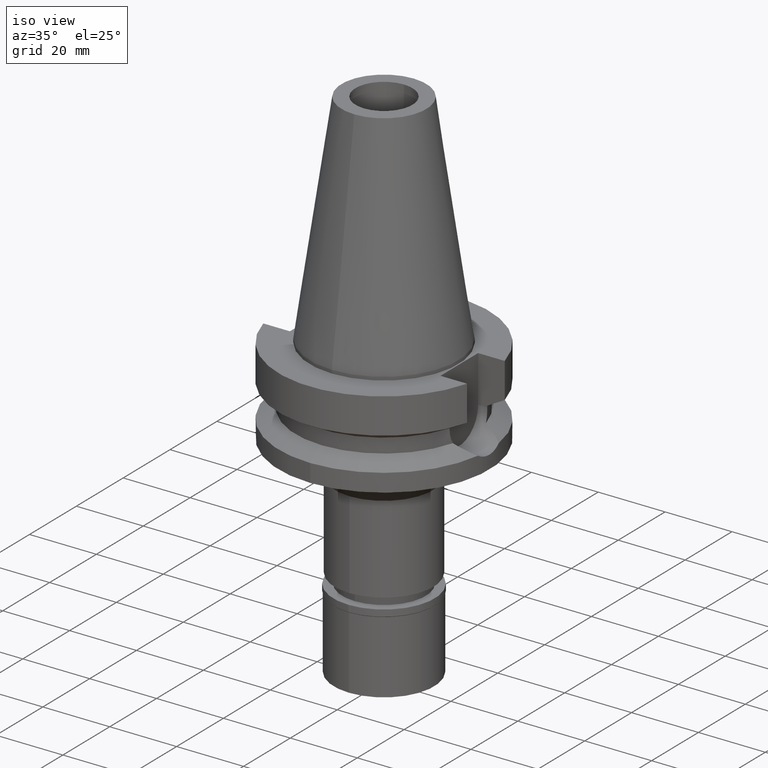
[diagram: clean part render]
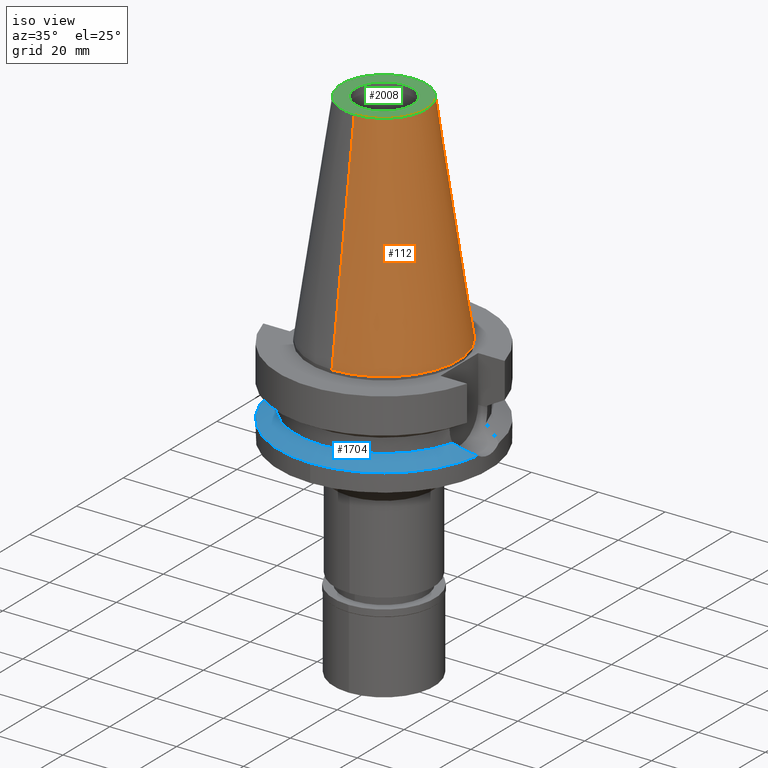
[diagram: same view with three faces highlighted in distinct colors, each labeled with its STEP entity id]
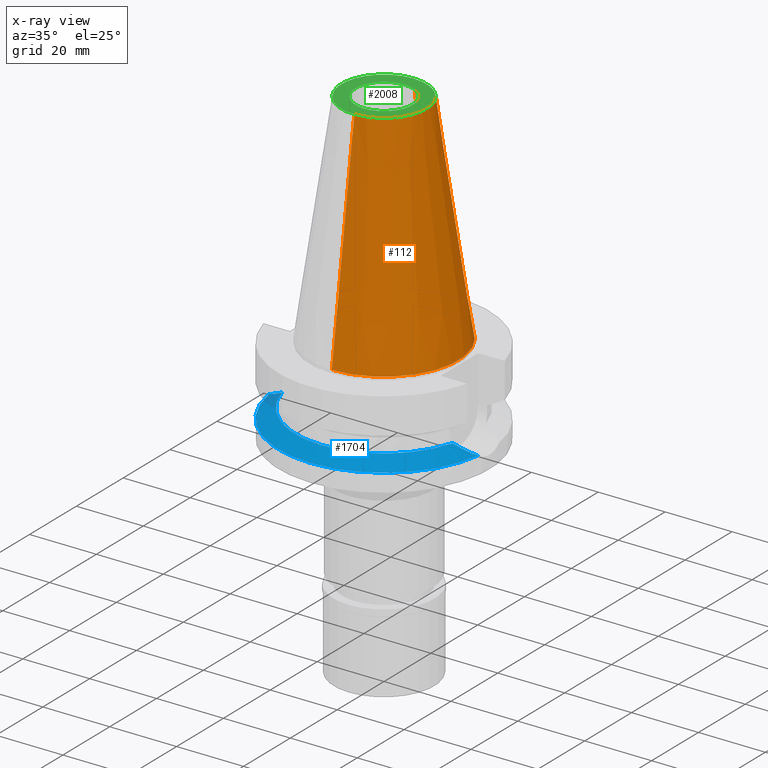
[diagram: x-ray of the same camera — body ghosted, the three highlighted faces saturated]
A machine part, iso view with three faces highlighted in distinct colors.
The next image is the same camera in x-ray (body ghosted, the three faces saturated) — at least one of them is partly hidden behind the body in this view.
Their STEP definitions:

[orange] entity #112 — the highlighted conical surface has half-angle 8.297 deg.
#112 = ADVANCED_FACE ( 'NONE', ( #1559 ), #3035, .T. ) ;
#232 = CARTESIAN_POINT ( 'NONE',  ( 0.0000000000000000000, -12.68766899429999917, 65.40000000000000568 ) ) ;
#292 = EDGE_CURVE ( 'NONE', #792, #3048, #1440, .T. ) ;
#346 = CARTESIAN_POINT ( 'NONE',  ( 0.0000000000000000000, 22.22500000000000142, -7.105427357600999334E-14 ) ) ;
#361 = CARTESIAN_POINT ( 'NONE',  ( 0.0000000000000000000, 12.68766899429999917, 65.40000000000000568 ) ) ;
#363 = VECTOR ( 'NONE', #839, 1000.000000000000114 ) ;
#732 = DIRECTION ( 'NONE',  ( 0.0000000000000000000, 1.000000000000000000, 0.0000000000000000000 ) ) ;
#792 = VERTEX_POINT ( 'NONE', #3096 ) ;
#822 = EDGE_CURVE ( 'NONE', #2802, #3048, #2033, .T. ) ;
#831 = AXIS2_PLACEMENT_3D ( 'NONE', #1141, #2102, #2855 ) ;
#839 = DIRECTION ( 'NONE',  ( 0.0000000000000000000, 0.1443043893539925626, -0.9895333461855498891 ) ) ;
#941 = CARTESIAN_POINT ( 'NONE',  ( 0.0000000000000000000, 0.0000000000000000000, 65.40000000000000568 ) ) ;
#982 = DIRECTION ( 'NONE',  ( 0.0000000000000000000, -0.1443043893539925626, -0.9895333461855498891 ) ) ;
#1141 = CARTESIAN_POINT ( 'NONE',  ( 0.0000000000000000000, 0.0000000000000000000, -2.273736754432000254E-13 ) ) ;
#1168 = EDGE_CURVE ( 'NONE', #2868, #2802, #3023, .T. ) ;
#1317 = ORIENTED_EDGE ( 'NONE', *, *, #822, .F. ) ;
#1440 = LINE ( 'NONE', #232, #2731 ) ;
#1559 = FACE_OUTER_BOUND ( 'NONE', #1953, .T. ) ;
#1674 = CIRCLE ( 'NONE', #1719, 12.68766899429999917 ) ;
#1719 = AXIS2_PLACEMENT_3D ( 'NONE', #941, #1949, #732 ) ;
#1776 = AXIS2_PLACEMENT_3D ( 'NONE', #2521, #2050, #1813 ) ;
#1813 = DIRECTION ( 'NONE',  ( 0.0000000000000000000, -1.000000000000000000, 0.0000000000000000000 ) ) ;
#1949 = DIRECTION ( 'NONE',  ( 0.0000000000000000000, 0.0000000000000000000, -1.000000000000000000 ) ) ;
#1953 = EDGE_LOOP ( 'NONE', ( #2608, #2435, #1317, #3103 ) ) ;
#2033 = CIRCLE ( 'NONE', #831, 22.22500000000000142 ) ;
#2050 = DIRECTION ( 'NONE',  ( 0.0000000000000000000, 0.0000000000000000000, -1.000000000000000000 ) ) ;
#2102 = DIRECTION ( 'NONE',  ( 0.0000000000000000000, 0.0000000000000000000, -1.000000000000000000 ) ) ;
#2336 = CARTESIAN_POINT ( 'NONE',  ( 0.0000000000000000000, 12.68766899429999917, 65.40000000000000568 ) ) ;
#2435 = ORIENTED_EDGE ( 'NONE', *, *, #292, .T. ) ;
#2521 = CARTESIAN_POINT ( 'NONE',  ( 0.0000000000000000000, 0.0000000000000000000, 32.70000000000000284 ) ) ;
#2608 = ORIENTED_EDGE ( 'NONE', *, *, #3056, .T. ) ;
#2731 = VECTOR ( 'NONE', #982, 1000.000000000000114 ) ;
#2802 = VERTEX_POINT ( 'NONE', #346 ) ;
#2855 = DIRECTION ( 'NONE',  ( 0.0000000000000000000, 1.000000000000000000, 0.0000000000000000000 ) ) ;
#2868 = VERTEX_POINT ( 'NONE', #2336 ) ;
#3023 = LINE ( 'NONE', #361, #363 ) ;
#3035 = CONICAL_SURFACE ( 'NONE', #1776, 17.45633449714999941, 0.1448099680379422438 ) ;
#3048 = VERTEX_POINT ( 'NONE', #3110 ) ;
#3056 = EDGE_CURVE ( 'NONE', #2868, #792, #1674, .T. ) ;
#3096 = CARTESIAN_POINT ( 'NONE',  ( 0.0000000000000000000, -12.68766899429999917, 65.40000000000000568 ) ) ;
#3103 = ORIENTED_EDGE ( 'NONE', *, *, #1168, .F. ) ;
#3110 = CARTESIAN_POINT ( 'NONE',  ( 0.0000000000000000000, -22.22500000000000142, -2.273736754432000254E-13 ) ) ;

[blue] entity #1704 — the highlighted conical surface has half-angle 60 deg.
#15 = CARTESIAN_POINT ( 'NONE',  ( 29.76982105345421914, -5.404320427155151485, -20.91622555146430429 ) ) ;
#28 = VERTEX_POINT ( 'NONE', #2698 ) ;
#67 = CARTESIAN_POINT ( 'NONE',  ( -27.47065402139822154, -6.468757675472927460, -19.74146199464955487 ) ) ;
#129 = DIRECTION ( 'NONE',  ( 0.0000000000000000000, 0.0000000000000000000, -1.000000000000000000 ) ) ;
#193 = B_SPLINE_CURVE_WITH_KNOTS ( 'NONE', 3,
 ( #2878, #977, #286, #15, #739, #1699, #2665, #2419, #258, #993, #2908, #2679, #1482, #2436, #270, #1241, #1966 ),
 .UNSPECIFIED., .F., .F.,
 ( 4, 2, 2, 1, 1, 1, 1, 1, 2, 2, 4 ),
 ( 0.0000000000000000000, 0.2499999999999662492, 0.3749999999999486522, 0.4374999999999395484, 0.4687499999999352740, 0.4843749999999334976, 0.4921874999999318323, 0.4960937499999305000, 0.4980468749999298894, 0.4999999999999292788, 1.000000000000000000 ),
 .UNSPECIFIED. ) ;
#221 = CARTESIAN_POINT ( 'NONE',  ( -31.17899877608999759, -4.485536235554000051, -21.63449434733000132 ) ) ;
#254 = AXIS2_PLACEMENT_3D ( 'NONE', #2751, #2535, #1036 ) ;
#258 = CARTESIAN_POINT ( 'NONE',  ( 28.61897016987714082, -5.988680026677794643, -20.32900422802094198 ) ) ;
#270 = CARTESIAN_POINT ( 'NONE',  ( 27.73230429448020828, -6.390938510081704216, -19.87634594008250133 ) ) ;
#286 = CARTESIAN_POINT ( 'NONE',  ( 30.43967032993277044, -5.011381104140312459, -21.25783662736348134 ) ) ;
#475 = CARTESIAN_POINT ( 'NONE',  ( -30.47175200557827068, -5.022102185217673487, -21.27443928782956561 ) ) ;
#488 = VERTEX_POINT ( 'NONE', #2283 ) ;
#518 = EDGE_LOOP ( 'NONE', ( #2089, #753, #2187, #1028, #2664 ) ) ;
#688 = CARTESIAN_POINT ( 'NONE',  ( -26.07040359068502866, -6.949796083382365097, -19.02447395380931283 ) ) ;
#713 = CARTESIAN_POINT ( 'NONE',  ( -27.52057603150045040, -6.449753868271356438, -19.76696955289208546 ) ) ;
#739 = CARTESIAN_POINT ( 'NONE',  ( 29.53370445138950018, -5.534581355758064980, -20.79578654995100351 ) ) ;
#753 = ORIENTED_EDGE ( 'NONE', *, *, #1742, .F. ) ;
#835 = DIRECTION ( 'NONE',  ( 0.9898094849552905306, -0.1423979757318985240, 0.0000000000000000000 ) ) ;
#862 = CIRCLE ( 'NONE', #1062, 26.50000000000000000 ) ;
#967 = CARTESIAN_POINT ( 'NONE',  ( -27.52933886014979947, -6.446408567850159699, -19.77144664971403643 ) ) ;
#977 = CARTESIAN_POINT ( 'NONE',  ( 30.83487453224974928, -4.746612509632987198, -21.45930277310862522 ) ) ;
#987 = CARTESIAN_POINT ( 'NONE',  ( -28.07183645631407032, -6.231961779058677209, -20.04870173871303507 ) ) ;
#993 = CARTESIAN_POINT ( 'NONE',  ( 28.55944365317538569, -6.015997510138801019, -20.29861694154288543 ) ) ;
#1010 = CARTESIAN_POINT ( 'NONE',  ( 31.17899877608999759, -4.485536235554000051, -21.63449434733000132 ) ) ;
#1028 = ORIENTED_EDGE ( 'NONE', *, *, #1745, .F. ) ;
#1036 = DIRECTION ( 'NONE',  ( 0.0000000000000000000, -1.000000000000000000, 0.0000000000000000000 ) ) ;
#1062 = AXIS2_PLACEMENT_3D ( 'NONE', #2787, #2518, #1086 ) ;
#1086 = DIRECTION ( 'NONE',  ( 0.0000000000000000000, -1.000000000000000000, 0.0000000000000000000 ) ) ;
#1187 = CARTESIAN_POINT ( 'NONE',  ( -29.60898557402410702, -5.537317144311764139, -20.83455795139698097 ) ) ;
#1241 = CARTESIAN_POINT ( 'NONE',  ( 26.74214023332276113, -6.765147190998635374, -19.36957692596562808 ) ) ;
#1288 = CARTESIAN_POINT ( 'NONE',  ( -25.53175183775000079, -7.097862220092999941, -18.74774300138999905 ) ) ;
#1313 = CIRCLE ( 'NONE', #2417, 31.50000000000000000 ) ;
#1367 = AXIS2_PLACEMENT_3D ( 'NONE', #2485, #129, #835 ) ;
#1411 = CARTESIAN_POINT ( 'NONE',  ( -27.17357340037822411, -6.578921279836705160, -19.58958909798310088 ) ) ;
#1482 = CARTESIAN_POINT ( 'NONE',  ( 28.50814364445222182, -6.039357040020113310, -20.27242796913080625 ) ) ;
#1621 = CONICAL_SURFACE ( 'NONE', #254, 29.00000000000000000, 1.047197551196400456 ) ;
#1659 = VERTEX_POINT ( 'NONE', #1010 ) ;
#1675 = CIRCLE ( 'NONE', #1367, 31.50000000000001421 ) ;
#1699 = CARTESIAN_POINT ( 'NONE',  ( 29.16030245098043139, -5.727528669919626836, -20.60527508336068081 ) ) ;
#1704 = ADVANCED_FACE ( 'NONE', ( #2720 ), #1621, .T. ) ;
#1708 = CARTESIAN_POINT ( 'NONE',  ( -27.50632344154401565, -6.455186114388115293, -19.75968739767788662 ) ) ;
#1742 = EDGE_CURVE ( 'NONE', #1659, #488, #1675, .T. ) ;
#1745 = EDGE_CURVE ( 'NONE', #1753, #28, #862, .T. ) ;
#1753 = VERTEX_POINT ( 'NONE', #1288 ) ;
#1966 = CARTESIAN_POINT ( 'NONE',  ( 25.53175183775000079, -7.097862220092999941, -18.74774300138999905 ) ) ;
#2089 = ORIENTED_EDGE ( 'NONE', *, *, #2995, .F. ) ;
#2148 = B_SPLINE_CURVE_WITH_KNOTS ( 'NONE', 3,
 ( #221, #475, #1187, #2185, #987, #3099, #2159, #2236, #967, #713, #1708, #67, #2622, #1411, #2867, #688, #2363 ),
 .UNSPECIFIED., .F., .F.,
 ( 4, 2, 2, 1, 2, 2, 1, 1, 2, 4 ),
 ( 0.0000000000000000000, 0.5000000000000196509, 0.6250000000000249800, 0.6562500000000264233, 0.6640625000000263123, 0.6679687500000267564, 0.6718750000000273115, 0.6875000000000259792, 0.7500000000000208722, 1.000000000000000000 ),
 .UNSPECIFIED. ) ;
#2159 = CARTESIAN_POINT ( 'NONE',  ( -27.64293414425125661, -6.402789111706371550, -19.82948868517129881 ) ) ;
#2185 = CARTESIAN_POINT ( 'NONE',  ( -28.33612795827837161, -6.118812149404362799, -20.18384185807175513 ) ) ;
#2187 = ORIENTED_EDGE ( 'NONE', *, *, #2200, .T. ) ;
#2200 = EDGE_CURVE ( 'NONE', #1659, #28, #193, .T. ) ;
#2236 = CARTESIAN_POINT ( 'NONE',  ( -27.55559696648158408, -6.436359641193128311, -19.78486291925455731 ) ) ;
#2275 = CARTESIAN_POINT ( 'NONE',  ( -31.17899877608999759, -4.485536235554000051, -21.63449434733000132 ) ) ;
#2283 = CARTESIAN_POINT ( 'NONE',  ( 0.0000000000000000000, -31.50000000000000000, -21.63449434733000132 ) ) ;
#2362 = VERTEX_POINT ( 'NONE', #2275 ) ;
#2363 = CARTESIAN_POINT ( 'NONE',  ( -25.53175183775000079, -7.097862220092999941, -18.74774300138999905 ) ) ;
#2417 = AXIS2_PLACEMENT_3D ( 'NONE', #2811, #2576, #2597 ) ;
#2419 = CARTESIAN_POINT ( 'NONE',  ( 28.73697595682336825, -5.933841338590164938, -20.38923996699079311 ) ) ;
#2436 = CARTESIAN_POINT ( 'NONE',  ( 28.50256533003389237, -6.041886957609320596, -20.26958013789097635 ) ) ;
#2485 = CARTESIAN_POINT ( 'NONE',  ( 0.0000000000000000000, 0.0000000000000000000, -21.63449434733000132 ) ) ;
#2518 = DIRECTION ( 'NONE',  ( 0.0000000000000000000, 0.0000000000000000000, 1.000000000000000000 ) ) ;
#2535 = DIRECTION ( 'NONE',  ( 0.0000000000000000000, 0.0000000000000000000, -1.000000000000000000 ) ) ;
#2576 = DIRECTION ( 'NONE',  ( 0.0000000000000000000, 0.0000000000000000000, -1.000000000000000000 ) ) ;
#2597 = DIRECTION ( 'NONE',  ( 0.0000000000000000000, -1.000000000000000000, 0.0000000000000000000 ) ) ;
#2622 = CARTESIAN_POINT ( 'NONE',  ( -27.32004560643614965, -6.525566753754934446, -19.66449489164223507 ) ) ;
#2664 = ORIENTED_EDGE ( 'NONE', *, *, #3052, .F. ) ;
#2665 = CARTESIAN_POINT ( 'NONE',  ( 28.96879557595630672, -5.823389798425212760, -20.50755610898542258 ) ) ;
#2679 = CARTESIAN_POINT ( 'NONE',  ( 28.51670973968315792, -6.035467042276468241, -20.27680108350781296 ) ) ;
#2698 = CARTESIAN_POINT ( 'NONE',  ( 25.53175183775000079, -7.097862220092999941, -18.74774300138999905 ) ) ;
#2720 = FACE_OUTER_BOUND ( 'NONE', #518, .T. ) ;
#2751 = CARTESIAN_POINT ( 'NONE',  ( 0.0000000000000000000, 0.0000000000000000000, -20.19111867435999841 ) ) ;
#2787 = CARTESIAN_POINT ( 'NONE',  ( 0.0000000000000000000, 0.0000000000000000000, -18.74774300138999905 ) ) ;
#2811 = CARTESIAN_POINT ( 'NONE',  ( 0.0000000000000000000, 0.0000000000000000000, -21.63449434733000132 ) ) ;
#2867 = CARTESIAN_POINT ( 'NONE',  ( -26.57797059093130798, -6.789678982130635809, -19.28481655784913329 ) ) ;
#2878 = CARTESIAN_POINT ( 'NONE',  ( 31.17899877608999759, -4.485536235554000051, -21.63449434733000132 ) ) ;
#2908 = CARTESIAN_POINT ( 'NONE',  ( 28.52954953838105467, -6.029630146583176753, -20.28335594405557529 ) ) ;
#2995 = EDGE_CURVE ( 'NONE', #488, #2362, #1313, .T. ) ;
#3052 = EDGE_CURVE ( 'NONE', #2362, #1753, #2148, .T. ) ;
#3099 = CARTESIAN_POINT ( 'NONE',  ( -27.72932210533976871, -6.368851090647809521, -19.87363800709438522 ) ) ;

[green] entity #2008 — the highlighted planar face has unit normal (0, 0, -1).
#134 = CARTESIAN_POINT ( 'NONE',  ( 0.0000000000000000000, -8.500000000000000000, 65.40000000000000568 ) ) ;
#261 = AXIS2_PLACEMENT_3D ( 'NONE', #290, #1781, #2739 ) ;
#290 = CARTESIAN_POINT ( 'NONE',  ( 0.0000000000000000000, 0.0000000000000000000, 65.40000000000000568 ) ) ;
#309 = EDGE_CURVE ( 'NONE', #2011, #686, #366, .T. ) ;
#366 = CIRCLE ( 'NONE', #261, 8.500000000000000000 ) ;
#643 = FACE_OUTER_BOUND ( 'NONE', #1915, .T. ) ;
#680 = PLANE ( 'NONE',  #968 ) ;
#686 = VERTEX_POINT ( 'NONE', #134 ) ;
#732 = DIRECTION ( 'NONE',  ( 0.0000000000000000000, 1.000000000000000000, 0.0000000000000000000 ) ) ;
#746 = DIRECTION ( 'NONE',  ( 0.0000000000000000000, 0.0000000000000000000, 1.000000000000000000 ) ) ;
#792 = VERTEX_POINT ( 'NONE', #3096 ) ;
#819 = DIRECTION ( 'NONE',  ( 0.0000000000000000000, -1.000000000000000000, 0.0000000000000000000 ) ) ;
#941 = CARTESIAN_POINT ( 'NONE',  ( 0.0000000000000000000, 0.0000000000000000000, 65.40000000000000568 ) ) ;
#968 = AXIS2_PLACEMENT_3D ( 'NONE', #1610, #1643, #2603 ) ;
#1174 = CARTESIAN_POINT ( 'NONE',  ( 0.0000000000000000000, 0.0000000000000000000, 65.40000000000000568 ) ) ;
#1404 = CARTESIAN_POINT ( 'NONE',  ( 0.0000000000000000000, 8.500000000000000000, 65.40000000000000568 ) ) ;
#1457 = DIRECTION ( 'NONE',  ( 0.0000000000000000000, -1.000000000000000000, 0.0000000000000000000 ) ) ;
#1610 = CARTESIAN_POINT ( 'NONE',  ( 0.0000000000000000000, 0.0000000000000000000, 65.40000000000000568 ) ) ;
#1643 = DIRECTION ( 'NONE',  ( 0.0000000000000000000, 0.0000000000000000000, -1.000000000000000000 ) ) ;
#1674 = CIRCLE ( 'NONE', #1719, 12.68766899429999917 ) ;
#1719 = AXIS2_PLACEMENT_3D ( 'NONE', #941, #1949, #732 ) ;
#1763 = EDGE_CURVE ( 'NONE', #792, #2868, #1871, .T. ) ;
#1781 = DIRECTION ( 'NONE',  ( 0.0000000000000000000, 0.0000000000000000000, 1.000000000000000000 ) ) ;
#1820 = AXIS2_PLACEMENT_3D ( 'NONE', #2986, #2235, #819 ) ;
#1871 = CIRCLE ( 'NONE', #1820, 12.68766899429999917 ) ;
#1915 = EDGE_LOOP ( 'NONE', ( #2628, #2059 ) ) ;
#1949 = DIRECTION ( 'NONE',  ( 0.0000000000000000000, 0.0000000000000000000, -1.000000000000000000 ) ) ;
#1972 = CIRCLE ( 'NONE', #2920, 8.500000000000000000 ) ;
#1980 = ORIENTED_EDGE ( 'NONE', *, *, #309, .F. ) ;
#2008 = ADVANCED_FACE ( 'NONE', ( #643, #2117 ), #680, .F. ) ;
#2011 = VERTEX_POINT ( 'NONE', #1404 ) ;
#2059 = ORIENTED_EDGE ( 'NONE', *, *, #1763, .F. ) ;
#2117 = FACE_BOUND ( 'NONE', #2517, .T. ) ;
#2235 = DIRECTION ( 'NONE',  ( 0.0000000000000000000, 0.0000000000000000000, -1.000000000000000000 ) ) ;
#2336 = CARTESIAN_POINT ( 'NONE',  ( 0.0000000000000000000, 12.68766899429999917, 65.40000000000000568 ) ) ;
#2517 = EDGE_LOOP ( 'NONE', ( #1980, #2540 ) ) ;
#2540 = ORIENTED_EDGE ( 'NONE', *, *, #3102, .F. ) ;
#2603 = DIRECTION ( 'NONE',  ( 0.0000000000000000000, -1.000000000000000000, 0.0000000000000000000 ) ) ;
#2628 = ORIENTED_EDGE ( 'NONE', *, *, #3056, .F. ) ;
#2739 = DIRECTION ( 'NONE',  ( 0.0000000000000000000, 1.000000000000000000, 0.0000000000000000000 ) ) ;
#2868 = VERTEX_POINT ( 'NONE', #2336 ) ;
#2920 = AXIS2_PLACEMENT_3D ( 'NONE', #1174, #746, #1457 ) ;
#2986 = CARTESIAN_POINT ( 'NONE',  ( 0.0000000000000000000, 0.0000000000000000000, 65.40000000000000568 ) ) ;
#3056 = EDGE_CURVE ( 'NONE', #2868, #792, #1674, .T. ) ;
#3096 = CARTESIAN_POINT ( 'NONE',  ( 0.0000000000000000000, -12.68766899429999917, 65.40000000000000568 ) ) ;
#3102 = EDGE_CURVE ( 'NONE', #686, #2011, #1972, .T. ) ;